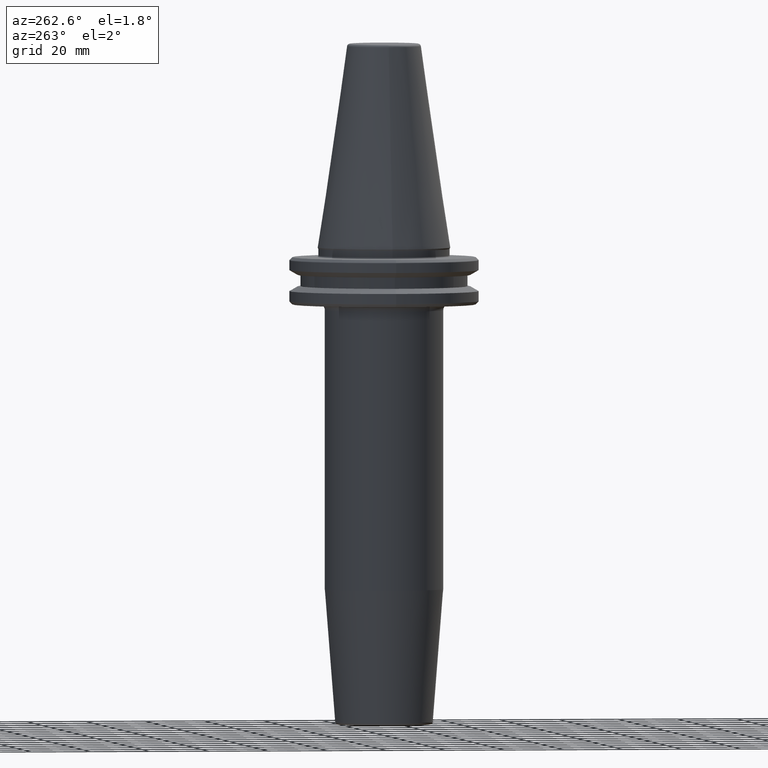
[diagram: clean part render]
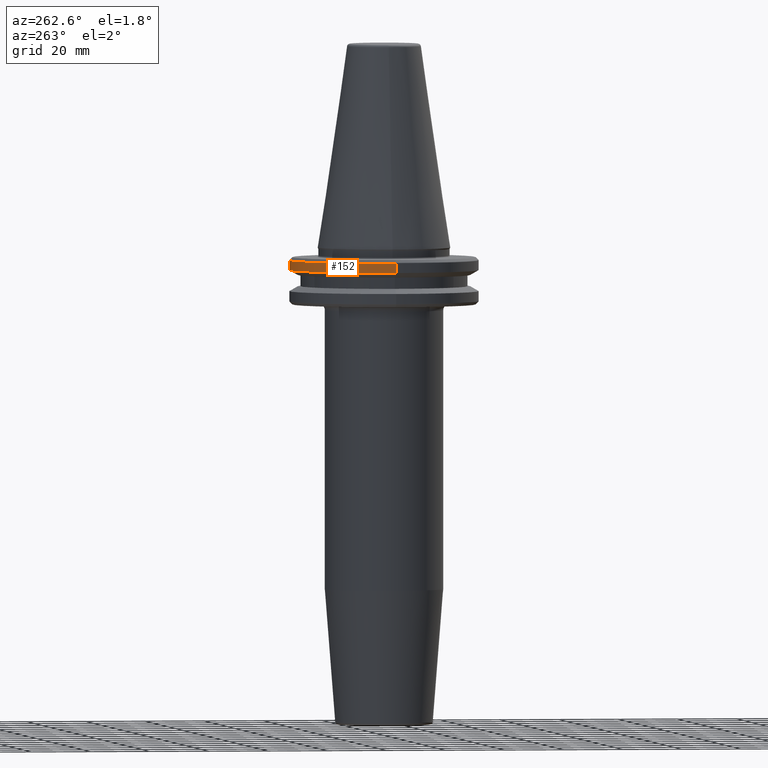
[diagram: same view with one face highlighted and labeled with its STEP entity id]
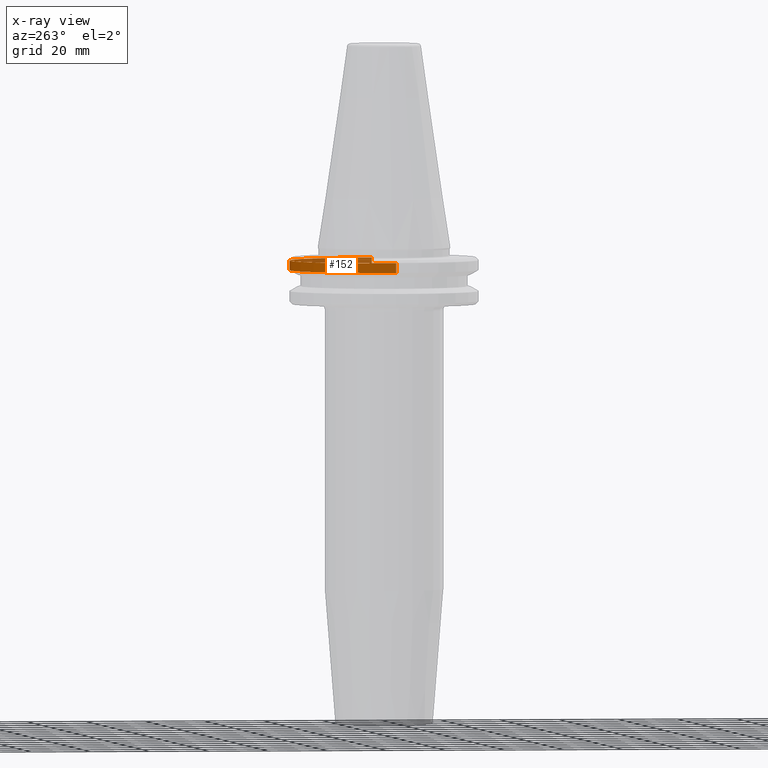
[diagram: x-ray of the same camera — body ghosted, the highlighted face saturated]
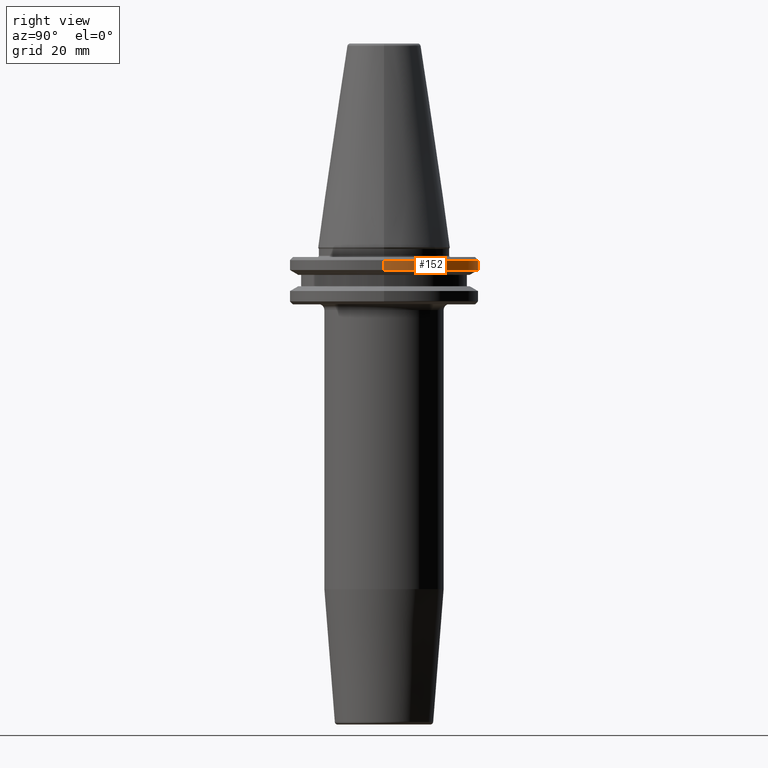
[diagram: same view with one face highlighted and labeled with its STEP entity id]
A machine part, auxiliary view. The second image highlights one B-rep face of the part: STEP entity #152.
The next image is the same camera in x-ray: the body ghosted, the highlighted face saturated — about 25% of this face is hidden behind the body in this view.
A second angle (right view) of the same face is appended — the face is thin or edge-on in the first view.
In plain terms, the highlighted cylindrical surface (partial cylindrical patch) has radius 31.75 mm, axis along (-0, -0, 1).
Its self-contained STEP definition (entity closure, byte-faithful):
#11 = EDGE_CURVE ( 'NONE', #847, #526, #731, .T. ) ;
#22 = VECTOR ( 'NONE', #547, 1000.000000000000000 ) ;
#57 = DIRECTION ( 'NONE',  ( -0.0000000000000000000, -0.0000000000000000000, 1.000000000000000000 ) ) ;
#69 = FACE_OUTER_BOUND ( 'NONE', #606, .T. ) ;
#91 = DIRECTION ( 'NONE',  ( 1.000000000000000000, 0.0000000000000000000, 0.0000000000000000000 ) ) ;
#152 = ADVANCED_FACE ( 'NONE', ( #69 ), #790, .T. ) ;
#175 = ORIENTED_EDGE ( 'NONE', *, *, #559, .T. ) ;
#202 = CARTESIAN_POINT ( 'NONE',  ( 0.0000000000000000000, 0.0000000000000000000, -4.365685424949250000 ) ) ;
#258 = CARTESIAN_POINT ( 'NONE',  ( 31.75000000000000000, 0.0000000000000000000, 113.5216080541959500 ) ) ;
#302 = LINE ( 'NONE', #258, #22 ) ;
#320 = CARTESIAN_POINT ( 'NONE',  ( -31.75000000000000000, 3.888253587292846500E-015, 113.5216080541959500 ) ) ;
#368 = EDGE_CURVE ( 'NONE', #715, #893, #302, .T. ) ;
#394 = CARTESIAN_POINT ( 'NONE',  ( -31.75000000000000000, 3.888253587292846500E-015, -7.578163357943284800 ) ) ;
#526 = VERTEX_POINT ( 'NONE', #570 ) ;
#547 = DIRECTION ( 'NONE',  ( -0.0000000000000000000, -0.0000000000000000000, 1.000000000000000000 ) ) ;
#552 = ORIENTED_EDGE ( 'NONE', *, *, #368, .F. ) ;
#553 = ORIENTED_EDGE ( 'NONE', *, *, #1049, .F. ) ;
#559 = EDGE_CURVE ( 'NONE', #715, #847, #810, .T. ) ;
#570 = CARTESIAN_POINT ( 'NONE',  ( -31.75000000000000000, 3.888253587292846500E-015, -4.365685424949250000 ) ) ;
#593 = DIRECTION ( 'NONE',  ( -0.0000000000000000000, -0.0000000000000000000, 1.000000000000000000 ) ) ;
#600 = DIRECTION ( 'NONE',  ( 1.000000000000000000, 0.0000000000000000000, 0.0000000000000000000 ) ) ;
#606 = EDGE_LOOP ( 'NONE', ( #175, #1061, #553, #552 ) ) ;
#715 = VERTEX_POINT ( 'NONE', #833 ) ;
#731 = LINE ( 'NONE', #320, #1200 ) ;
#734 = CARTESIAN_POINT ( 'NONE',  ( 0.0000000000000000000, 0.0000000000000000000, -7.578163357943284800 ) ) ;
#759 = CARTESIAN_POINT ( 'NONE',  ( 31.75000000000000000, 0.0000000000000000000, -4.365685424949250000 ) ) ;
#771 = CARTESIAN_POINT ( 'NONE',  ( 0.0000000000000000000, 0.0000000000000000000, 113.5216080541959500 ) ) ;
#790 = CYLINDRICAL_SURFACE ( 'NONE', #1213, 31.75000000000000000 ) ;
#798 = CIRCLE ( 'NONE', #895, 31.75000000000000000 ) ;
#810 = CIRCLE ( 'NONE', #879, 31.75000000000000000 ) ;
#833 = CARTESIAN_POINT ( 'NONE',  ( 31.75000000000000000, 0.0000000000000000000, -7.578163357943284800 ) ) ;
#847 = VERTEX_POINT ( 'NONE', #394 ) ;
#864 = DIRECTION ( 'NONE',  ( 1.000000000000000000, 0.0000000000000000000, 0.0000000000000000000 ) ) ;
#879 = AXIS2_PLACEMENT_3D ( 'NONE', #734, #1000, #600 ) ;
#893 = VERTEX_POINT ( 'NONE', #759 ) ;
#895 = AXIS2_PLACEMENT_3D ( 'NONE', #202, #593, #91 ) ;
#936 = DIRECTION ( 'NONE',  ( -0.0000000000000000000, -0.0000000000000000000, 1.000000000000000000 ) ) ;
#1000 = DIRECTION ( 'NONE',  ( -0.0000000000000000000, -0.0000000000000000000, 1.000000000000000000 ) ) ;
#1049 = EDGE_CURVE ( 'NONE', #893, #526, #798, .T. ) ;
#1061 = ORIENTED_EDGE ( 'NONE', *, *, #11, .T. ) ;
#1200 = VECTOR ( 'NONE', #936, 1000.000000000000000 ) ;
#1213 = AXIS2_PLACEMENT_3D ( 'NONE', #771, #57, #864 ) ;